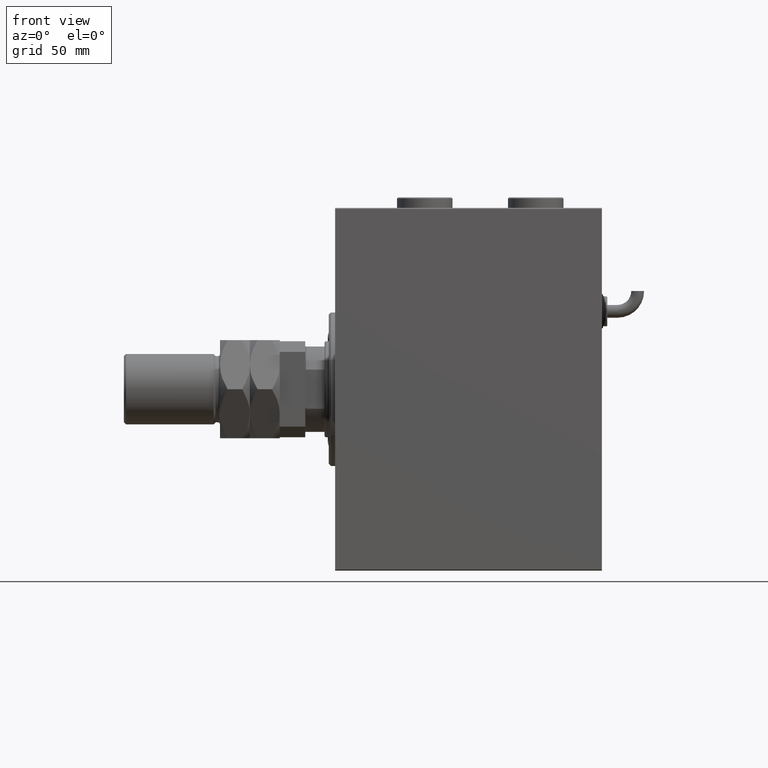
[diagram: clean part render]
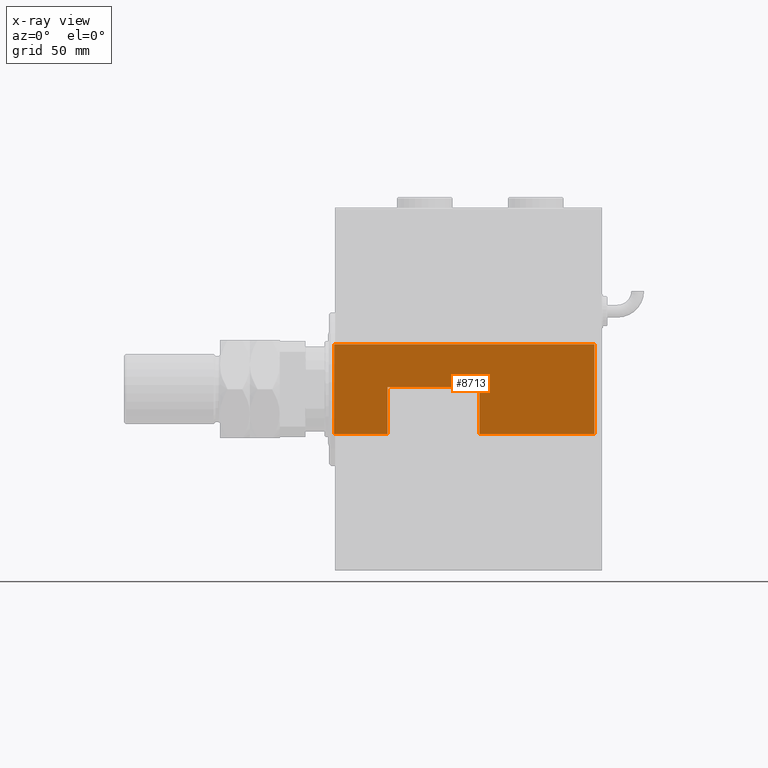
[diagram: x-ray — body ghosted, one internal face saturated and labeled with its STEP entity id]
A machine part, front view, then the same camera in x-ray: the body is ghosted and one INTERNAL B-rep face — a face not visible from any outside direction — is saturated and labeled: STEP entity #8713.
In plain terms, the highlighted planar face has unit normal (0, 1, -0).
Its self-contained STEP definition (entity closure, byte-faithful):
#443 = CARTESIAN_POINT ( 'NONE',  ( -26.00000000000000000, 22.79999999999999716, 125.0000000000000000 ) ) ;
#569 = VERTEX_POINT ( 'NONE', #39332 ) ;
#1059 = FACE_OUTER_BOUND ( 'NONE', #6033, .T. ) ;
#1643 = VERTEX_POINT ( 'NONE', #3046 ) ;
#2783 = AXIS2_PLACEMENT_3D ( 'NONE', #443, #5808, #58042 ) ;
#3046 = CARTESIAN_POINT ( 'NONE',  ( -20.99999999999999645, 22.79999999999999716, 57.00000000000000711 ) ) ;
#4859 = ORIENTED_EDGE ( 'NONE', *, *, #6186, .T. ) ;
#5808 = DIRECTION ( 'NONE',  ( 0.000000000000000000, 1.000000000000000000, 0.000000000000000000 ) ) ;
#6033 = EDGE_LOOP ( 'NONE', ( #54986, #39436, #23320, #30151, #47113, #44381, #48459, #4859 ) ) ;
#6186 = EDGE_CURVE ( 'NONE', #569, #22881, #60369, .T. ) ;
#8635 = DIRECTION ( 'NONE',  ( -1.000000000000000000, 0.000000000000000000, 0.000000000000000000 ) ) ;
#8713 = ADVANCED_FACE ( 'NONE', ( #1059 ), #10258, .F. ) ;
#10258 = PLANE ( 'NONE',  #2783 ) ;
#12407 = CARTESIAN_POINT ( 'NONE',  ( 1.000000000000014655, 22.79999999999999716, 125.0000000000000000 ) ) ;
#12644 = VERTEX_POINT ( 'NONE', #16843 ) ;
#12970 = LINE ( 'NONE', #57269, #48413 ) ;
#14396 = VECTOR ( 'NONE', #8635, 1000.000000000000000 ) ;
#16255 = LINE ( 'NONE', #30479, #29538 ) ;
#16843 = CARTESIAN_POINT ( 'NONE',  ( 20.99999999999998579, 22.79999999999999716, 3.000000000000002665 ) ) ;
#22881 = VERTEX_POINT ( 'NONE', #38725 ) ;
#23320 = ORIENTED_EDGE ( 'NONE', *, *, #51157, .T. ) ;
#25995 = DIRECTION ( 'NONE',  ( 0.000000000000000000, -0.000000000000000000, 1.000000000000000000 ) ) ;
#26506 = LINE ( 'NONE', #27658, #26930 ) ;
#26930 = VECTOR ( 'NONE', #46975, 1000.000000000000000 ) ;
#27518 = CARTESIAN_POINT ( 'NONE',  ( -26.00000000000000000, 22.79999999999999716, 125.0000000000000000 ) ) ;
#27658 = CARTESIAN_POINT ( 'NONE',  ( -26.00000000000000000, 22.79999999999999716, 57.00000000000000711 ) ) ;
#28011 = CARTESIAN_POINT ( 'NONE',  ( 20.99999999999998579, 22.79999999999999716, 125.0000000000000000 ) ) ;
#28870 = VERTEX_POINT ( 'NONE', #52423 ) ;
#29538 = VECTOR ( 'NONE', #49805, 1000.000000000000000 ) ;
#30151 = ORIENTED_EDGE ( 'NONE', *, *, #47728, .F. ) ;
#30479 = CARTESIAN_POINT ( 'NONE',  ( -20.99999999999999645, 22.79999999999999716, 0.000000000000000000 ) ) ;
#31964 = VECTOR ( 'NONE', #36634, 1000.000000000000000 ) ;
#34582 = CARTESIAN_POINT ( 'NONE',  ( 20.99999999999999645, 22.79999999999999716, 125.0000000000000000 ) ) ;
#34873 = LINE ( 'NONE', #34582, #55350 ) ;
#36126 = LINE ( 'NONE', #12407, #58847 ) ;
#36634 = DIRECTION ( 'NONE',  ( 1.000000000000000000, -0.000000000000000000, 0.000000000000000000 ) ) ;
#38725 = CARTESIAN_POINT ( 'NONE',  ( 1.000000000000014655, 22.79999999999999716, 100.0000000000000000 ) ) ;
#39332 = CARTESIAN_POINT ( 'NONE',  ( -20.99999999999999645, 22.79999999999999716, 100.0000000000000000 ) ) ;
#39399 = EDGE_CURVE ( 'NONE', #52362, #569, #12970, .T. ) ;
#39436 = ORIENTED_EDGE ( 'NONE', *, *, #55508, .T. ) ;
#40633 = VECTOR ( 'NONE', #46531, 1000.000000000000000 ) ;
#44381 = ORIENTED_EDGE ( 'NONE', *, *, #46261, .F. ) ;
#46261 = EDGE_CURVE ( 'NONE', #52362, #56704, #56026, .T. ) ;
#46531 = DIRECTION ( 'NONE',  ( 1.000000000000000000, 0.000000000000000000, 0.000000000000000000 ) ) ;
#46975 = DIRECTION ( 'NONE',  ( -1.000000000000000000, 0.000000000000000000, 0.000000000000000000 ) ) ;
#47113 = ORIENTED_EDGE ( 'NONE', *, *, #58052, .T. ) ;
#47159 = EDGE_CURVE ( 'NONE', #56915, #22881, #36126, .T. ) ;
#47728 = EDGE_CURVE ( 'NONE', #12644, #28870, #57361, .T. ) ;
#48413 = VECTOR ( 'NONE', #51588, 1000.000000000000000 ) ;
#48459 = ORIENTED_EDGE ( 'NONE', *, *, #39399, .T. ) ;
#49805 = DIRECTION ( 'NONE',  ( 0.000000000000000000, 0.000000000000000000, -1.000000000000000000 ) ) ;
#50450 = CARTESIAN_POINT ( 'NONE',  ( 1.000000000000014655, 22.79999999999999716, 57.00000000000000711 ) ) ;
#50902 = CARTESIAN_POINT ( 'NONE',  ( -26.00000000000000000, 22.79999999999999716, 100.0000000000000000 ) ) ;
#51157 = EDGE_CURVE ( 'NONE', #1643, #28870, #16255, .T. ) ;
#51588 = DIRECTION ( 'NONE',  ( 0.000000000000000000, 0.000000000000000000, -1.000000000000000000 ) ) ;
#51983 = CARTESIAN_POINT ( 'NONE',  ( -26.00000000000000000, 22.79999999999999716, 3.000000000000002665 ) ) ;
#52362 = VERTEX_POINT ( 'NONE', #56680 ) ;
#52423 = CARTESIAN_POINT ( 'NONE',  ( -20.99999999999999645, 22.79999999999999716, 3.000000000000002665 ) ) ;
#53899 = DIRECTION ( 'NONE',  ( -0.000000000000000000, -0.000000000000000000, 1.000000000000000000 ) ) ;
#54986 = ORIENTED_EDGE ( 'NONE', *, *, #47159, .F. ) ;
#55350 = VECTOR ( 'NONE', #53899, 1000.000000000000000 ) ;
#55508 = EDGE_CURVE ( 'NONE', #56915, #1643, #26506, .T. ) ;
#56026 = LINE ( 'NONE', #27518, #40633 ) ;
#56680 = CARTESIAN_POINT ( 'NONE',  ( -20.99999999999999645, 22.79999999999999716, 125.0000000000000000 ) ) ;
#56704 = VERTEX_POINT ( 'NONE', #28011 ) ;
#56915 = VERTEX_POINT ( 'NONE', #50450 ) ;
#57269 = CARTESIAN_POINT ( 'NONE',  ( -20.99999999999999645, 22.79999999999999716, 0.000000000000000000 ) ) ;
#57361 = LINE ( 'NONE', #51983, #14396 ) ;
#58042 = DIRECTION ( 'NONE',  ( 0.000000000000000000, -0.000000000000000000, 1.000000000000000000 ) ) ;
#58052 = EDGE_CURVE ( 'NONE', #12644, #56704, #34873, .T. ) ;
#58847 = VECTOR ( 'NONE', #25995, 1000.000000000000000 ) ;
#60369 = LINE ( 'NONE', #50902, #31964 ) ;